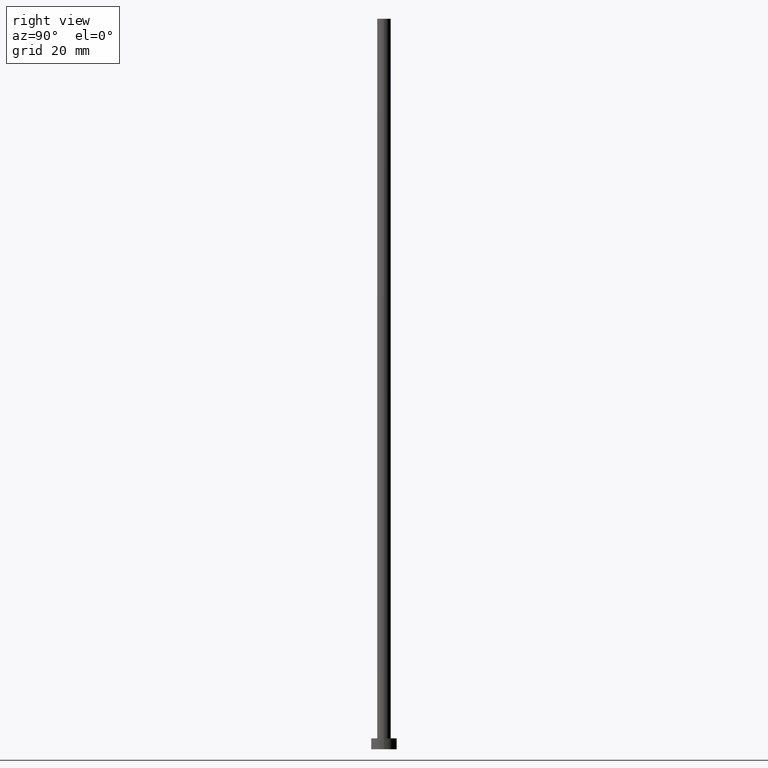
[diagram: clean part render]
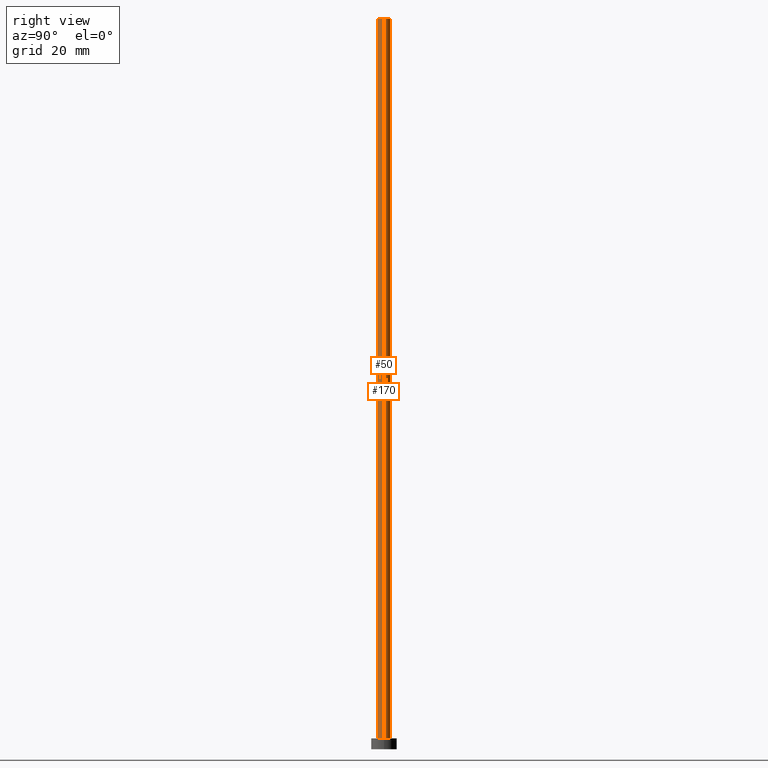
[diagram: same view with one multi-face feature highlighted, each face labeled with its STEP entity id]
A machine part, right view. The highlighted faces form ONE feature: a constant-radius fillet chain: 2 tangent blend faces with common blend radius 1.85 mm. The faces share edges in the B-rep.
Their STEP definitions:
[1] entity #170 (Cylinder):
#4 = EDGE_CURVE ( 'NONE', #183, #167, #207, .T. ) ;
#7 = CARTESIAN_POINT ( 'NONE',  ( 1.850000000000000089, 2.265596578422603100E-16, 3.000000000000000000 ) ) ;
#13 = LINE ( 'NONE', #85, #92 ) ;
#19 = VECTOR ( 'NONE', #210, 1000.000000000000000 ) ;
#31 = DIRECTION ( 'NONE',  ( -0.000000000000000000, -0.000000000000000000, -1.000000000000000000 ) ) ;
#38 = ORIENTED_EDGE ( 'NONE', *, *, #97, .F. ) ;
#43 = ORIENTED_EDGE ( 'NONE', *, *, #122, .F. ) ;
#58 = CARTESIAN_POINT ( 'NONE',  ( -1.850000000000000089, 0.000000000000000000, 200.0000000000000000 ) ) ;
#62 = FACE_OUTER_BOUND ( 'NONE', #166, .T. ) ;
#85 = CARTESIAN_POINT ( 'NONE',  ( -1.850000000000000089, 0.000000000000000000, 200.0000000000000000 ) ) ;
#88 = ORIENTED_EDGE ( 'NONE', *, *, #208, .T. ) ;
#92 = VECTOR ( 'NONE', #31, 1000.000000000000000 ) ;
#97 = EDGE_CURVE ( 'NONE', #249, #167, #13, .T. ) ;
#101 = DIRECTION ( 'NONE',  ( -0.000000000000000000, -0.000000000000000000, -1.000000000000000000 ) ) ;
#105 = AXIS2_PLACEMENT_3D ( 'NONE', #220, #101, #159 ) ;
#112 = LINE ( 'NONE', #237, #19 ) ;
#122 = EDGE_CURVE ( 'NONE', #187, #249, #177, .T. ) ;
#128 = DIRECTION ( 'NONE',  ( 0.000000000000000000, 0.000000000000000000, 1.000000000000000000 ) ) ;
#138 = CYLINDRICAL_SURFACE ( 'NONE', #105, 1.850000000000000089 ) ;
#142 = ORIENTED_EDGE ( 'NONE', *, *, #4, .T. ) ;
#156 = CARTESIAN_POINT ( 'NONE',  ( 1.850000000000000089, 2.265596578422603100E-16, 200.0000000000000000 ) ) ;
#159 = DIRECTION ( 'NONE',  ( -1.000000000000000000, 0.000000000000000000, 0.000000000000000000 ) ) ;
#164 = DIRECTION ( 'NONE',  ( 1.000000000000000000, 0.000000000000000000, 0.000000000000000000 ) ) ;
#166 = EDGE_LOOP ( 'NONE', ( #43, #88, #142, #38 ) ) ;
#167 = VERTEX_POINT ( 'NONE', #201 ) ;
#170 = ADVANCED_FACE ( 'NONE', ( #62 ), #138, .T. ) ;
#177 = CIRCLE ( 'NONE', #250, 1.850000000000000089 ) ;
#183 = VERTEX_POINT ( 'NONE', #7 ) ;
#187 = VERTEX_POINT ( 'NONE', #156 ) ;
#201 = CARTESIAN_POINT ( 'NONE',  ( -1.850000000000000089, 0.000000000000000000, 3.000000000000000000 ) ) ;
#204 = CARTESIAN_POINT ( 'NONE',  ( 0.000000000000000000, 0.000000000000000000, 3.000000000000000000 ) ) ;
#207 = CIRCLE ( 'NONE', #245, 1.850000000000000089 ) ;
#208 = EDGE_CURVE ( 'NONE', #187, #183, #112, .T. ) ;
#210 = DIRECTION ( 'NONE',  ( -0.000000000000000000, -0.000000000000000000, -1.000000000000000000 ) ) ;
#216 = DIRECTION ( 'NONE',  ( 0.000000000000000000, 0.000000000000000000, 1.000000000000000000 ) ) ;
#220 = CARTESIAN_POINT ( 'NONE',  ( 0.000000000000000000, 0.000000000000000000, 200.0000000000000000 ) ) ;
#237 = CARTESIAN_POINT ( 'NONE',  ( 1.850000000000000089, 2.265596578422603100E-16, 200.0000000000000000 ) ) ;
#241 = CARTESIAN_POINT ( 'NONE',  ( 0.000000000000000000, 0.000000000000000000, 200.0000000000000000 ) ) ;
#245 = AXIS2_PLACEMENT_3D ( 'NONE', #204, #216, #164 ) ;
#246 = DIRECTION ( 'NONE',  ( 1.000000000000000000, 0.000000000000000000, 0.000000000000000000 ) ) ;
#249 = VERTEX_POINT ( 'NONE', #58 ) ;
#250 = AXIS2_PLACEMENT_3D ( 'NONE', #241, #128, #246 ) ;
[2] entity #50 (Cylinder):
#7 = CARTESIAN_POINT ( 'NONE',  ( 1.850000000000000089, 2.265596578422603100E-16, 3.000000000000000000 ) ) ;
#13 = LINE ( 'NONE', #85, #92 ) ;
#14 = EDGE_LOOP ( 'NONE', ( #51, #123, #136, #205 ) ) ;
#19 = VECTOR ( 'NONE', #210, 1000.000000000000000 ) ;
#31 = DIRECTION ( 'NONE',  ( -0.000000000000000000, -0.000000000000000000, -1.000000000000000000 ) ) ;
#34 = EDGE_CURVE ( 'NONE', #249, #187, #151, .T. ) ;
#39 = CYLINDRICAL_SURFACE ( 'NONE', #59, 1.850000000000000089 ) ;
#40 = EDGE_CURVE ( 'NONE', #167, #183, #232, .T. ) ;
#45 = DIRECTION ( 'NONE',  ( 1.000000000000000000, 0.000000000000000000, 0.000000000000000000 ) ) ;
#50 = ADVANCED_FACE ( 'NONE', ( #102 ), #39, .T. ) ;
#51 = ORIENTED_EDGE ( 'NONE', *, *, #208, .F. ) ;
#54 = DIRECTION ( 'NONE',  ( -1.000000000000000000, 0.000000000000000000, 0.000000000000000000 ) ) ;
#58 = CARTESIAN_POINT ( 'NONE',  ( -1.850000000000000089, 0.000000000000000000, 200.0000000000000000 ) ) ;
#59 = AXIS2_PLACEMENT_3D ( 'NONE', #149, #120, #54 ) ;
#65 = AXIS2_PLACEMENT_3D ( 'NONE', #109, #140, #223 ) ;
#85 = CARTESIAN_POINT ( 'NONE',  ( -1.850000000000000089, 0.000000000000000000, 200.0000000000000000 ) ) ;
#92 = VECTOR ( 'NONE', #31, 1000.000000000000000 ) ;
#97 = EDGE_CURVE ( 'NONE', #249, #167, #13, .T. ) ;
#102 = FACE_OUTER_BOUND ( 'NONE', #14, .T. ) ;
#109 = CARTESIAN_POINT ( 'NONE',  ( 0.000000000000000000, 0.000000000000000000, 3.000000000000000000 ) ) ;
#112 = LINE ( 'NONE', #237, #19 ) ;
#120 = DIRECTION ( 'NONE',  ( -0.000000000000000000, -0.000000000000000000, -1.000000000000000000 ) ) ;
#123 = ORIENTED_EDGE ( 'NONE', *, *, #34, .F. ) ;
#136 = ORIENTED_EDGE ( 'NONE', *, *, #97, .T. ) ;
#140 = DIRECTION ( 'NONE',  ( 0.000000000000000000, 0.000000000000000000, 1.000000000000000000 ) ) ;
#147 = CARTESIAN_POINT ( 'NONE',  ( 0.000000000000000000, 0.000000000000000000, 200.0000000000000000 ) ) ;
#149 = CARTESIAN_POINT ( 'NONE',  ( 0.000000000000000000, 0.000000000000000000, 200.0000000000000000 ) ) ;
#151 = CIRCLE ( 'NONE', #209, 1.850000000000000089 ) ;
#156 = CARTESIAN_POINT ( 'NONE',  ( 1.850000000000000089, 2.265596578422603100E-16, 200.0000000000000000 ) ) ;
#167 = VERTEX_POINT ( 'NONE', #201 ) ;
#183 = VERTEX_POINT ( 'NONE', #7 ) ;
#187 = VERTEX_POINT ( 'NONE', #156 ) ;
#201 = CARTESIAN_POINT ( 'NONE',  ( -1.850000000000000089, 0.000000000000000000, 3.000000000000000000 ) ) ;
#205 = ORIENTED_EDGE ( 'NONE', *, *, #40, .T. ) ;
#208 = EDGE_CURVE ( 'NONE', #187, #183, #112, .T. ) ;
#209 = AXIS2_PLACEMENT_3D ( 'NONE', #147, #228, #45 ) ;
#210 = DIRECTION ( 'NONE',  ( -0.000000000000000000, -0.000000000000000000, -1.000000000000000000 ) ) ;
#223 = DIRECTION ( 'NONE',  ( 1.000000000000000000, 0.000000000000000000, 0.000000000000000000 ) ) ;
#228 = DIRECTION ( 'NONE',  ( 0.000000000000000000, 0.000000000000000000, 1.000000000000000000 ) ) ;
#232 = CIRCLE ( 'NONE', #65, 1.850000000000000089 ) ;
#237 = CARTESIAN_POINT ( 'NONE',  ( 1.850000000000000089, 2.265596578422603100E-16, 200.0000000000000000 ) ) ;
#249 = VERTEX_POINT ( 'NONE', #58 ) ;